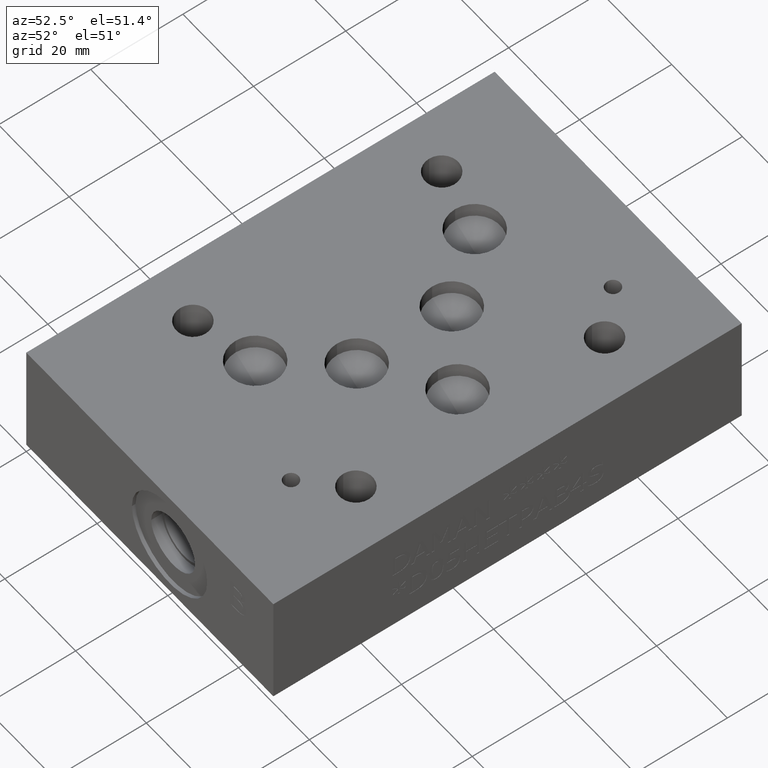
[diagram: clean part render]
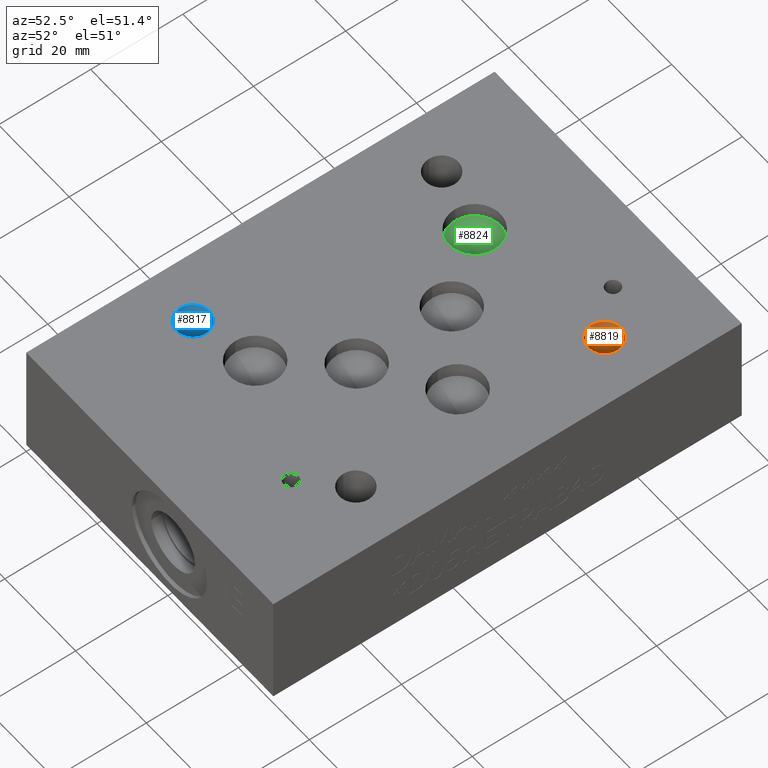
[diagram: same view with three faces highlighted in distinct colors, each labeled with its STEP entity id]
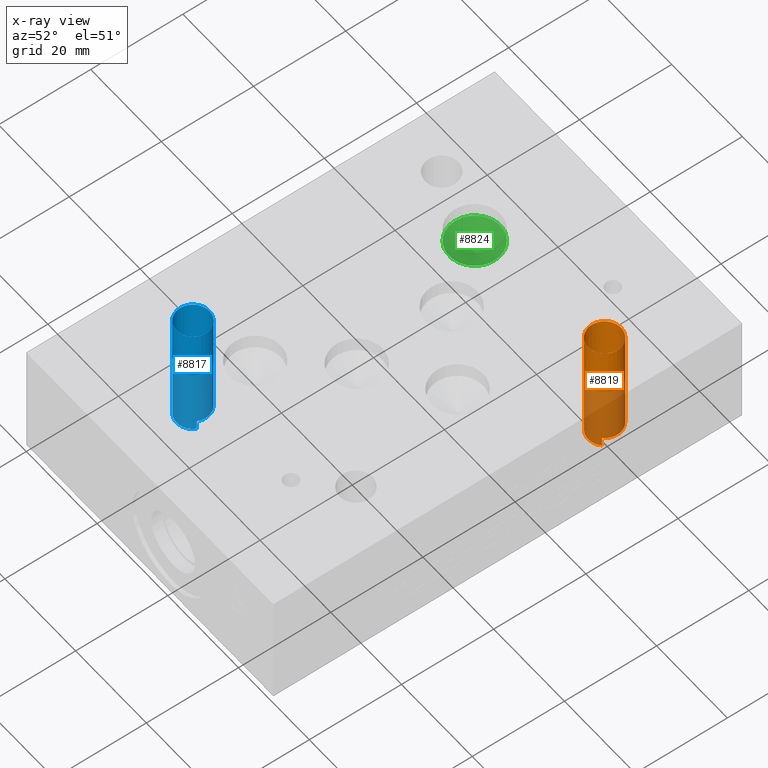
[diagram: x-ray of the same camera — body ghosted, the three highlighted faces saturated]
A machine part, auxiliary view with three faces highlighted in distinct colors.
The next image is the same camera in x-ray (body ghosted, the three faces saturated) — at least one of them is partly hidden behind the body in this view.
Their STEP definitions:

[orange] entity #8819 — the highlighted cylindrical surface (bore or boss wall) has radius 3.5687 mm, axis along (0, 0, 1).
#43=CYLINDRICAL_SURFACE('',#9265,3.5687);
#111=CIRCLE('',#9219,3.5687);
#112=CIRCLE('',#9220,3.5687);
#134=CIRCLE('',#9266,3.5687);
#968=FACE_OUTER_BOUND('',#1487,.T.);
#1487=EDGE_LOOP('',(#7833,#7834,#7835,#7836,#7837,#7838,#7839,#7840));
#2402=LINE('',#14647,#3324);
#2403=LINE('',#14649,#3325);
#2424=LINE('',#14783,#3346);
#3324=VECTOR('',#10890,10.);
#3325=VECTOR('',#10891,10.);
#3346=VECTOR('',#11032,3.5687);
#3548=B_SPLINE_CURVE_WITH_KNOTS('',3,(#14621,#14622,#14623,#14624,#14625,
#14626,#14627,#14628,#14629,#14630,#14631,#14632,#14633,#14634,#14635,#14636,
#14637,#14638,#14639,#14640,#14641,#14642,#14643),.UNSPECIFIED.,.F.,.F.,
(4,2,2,2,2,2,2,3,2,2,4),(-0.804390652764633,-0.803493013769078,-0.669328428982256,
-0.535163844195435,-0.401372883146576,-0.267581922097717,-0.133790961048859,
0.,0.134164584786822,0.268329169573644,0.2692268085687),.UNSPECIFIED.);
#4293=VERTEX_POINT('',#14619);
#4294=VERTEX_POINT('',#14620);
#4295=VERTEX_POINT('',#14646);
#4296=VERTEX_POINT('',#14648);
#4304=VERTEX_POINT('',#14693);
#4328=VERTEX_POINT('',#14781);
#5452=EDGE_CURVE('',#4293,#4294,#3548,.T.);
#5454=EDGE_CURVE('',#4294,#4295,#2402,.T.);
#5455=EDGE_CURVE('',#4296,#4293,#2403,.T.);
#5469=EDGE_CURVE('',#4296,#4304,#111,.T.);
#5470=EDGE_CURVE('',#4304,#4295,#112,.T.);
#5509=EDGE_CURVE('',#4328,#4328,#134,.T.);
#5510=EDGE_CURVE('',#4328,#4304,#2424,.T.);
#7833=ORIENTED_EDGE('',*,*,#5509,.F.);
#7834=ORIENTED_EDGE('',*,*,#5510,.T.);
#7835=ORIENTED_EDGE('',*,*,#5469,.F.);
#7836=ORIENTED_EDGE('',*,*,#5455,.T.);
#7837=ORIENTED_EDGE('',*,*,#5452,.T.);
#7838=ORIENTED_EDGE('',*,*,#5454,.T.);
#7839=ORIENTED_EDGE('',*,*,#5470,.F.);
#7840=ORIENTED_EDGE('',*,*,#5510,.F.);
#8819=ADVANCED_FACE('',(#968),#43,.F.);
#9219=AXIS2_PLACEMENT_3D('',#14694,#10919,#10920);
#9220=AXIS2_PLACEMENT_3D('',#14695,#10921,#10922);
#9265=AXIS2_PLACEMENT_3D('',#14780,#11028,#11029);
#9266=AXIS2_PLACEMENT_3D('',#14782,#11030,#11031);
#10890=DIRECTION('',(0.,0.,-1.));
#10891=DIRECTION('',(0.,0.,1.));
#10919=DIRECTION('center_axis',(0.,0.,1.));
#10920=DIRECTION('ref_axis',(1.,0.,0.));
#10921=DIRECTION('center_axis',(0.,0.,1.));
#10922=DIRECTION('ref_axis',(1.,0.,0.));
#11028=DIRECTION('center_axis',(0.,0.,1.));
#11029=DIRECTION('ref_axis',(1.,0.,0.));
#11030=DIRECTION('center_axis',(0.,0.,-1.));
#11031=DIRECTION('ref_axis',(1.,0.,0.));
#11032=DIRECTION('',(0.,0.,-1.));
#14619=CARTESIAN_POINT('',(55.4330060195422,83.5176939804543,2.06039));
#14620=CARTESIAN_POINT('',(60.4798939804578,78.4708060195457,2.06039));
#14621=CARTESIAN_POINT('Ctrl Pts',(55.4330060195422,83.5176939804543,2.06039000000001));
#14622=CARTESIAN_POINT('Ctrl Pts',(55.4351289571659,83.5198062605668,2.06039870179396));
#14623=CARTESIAN_POINT('Ctrl Pts',(55.4372536206082,83.5219149400396,2.06040739979099));
#14624=CARTESIAN_POINT('Ctrl Pts',(55.7571951142906,83.8386521240275,2.06171555374587));
#14625=CARTESIAN_POINT('Ctrl Pts',(56.158994558232,84.1109056382655,2.06310185472209));
#14626=CARTESIAN_POINT('Ctrl Pts',(57.0381912453334,84.4706640378489,2.06565238125241));
#14627=CARTESIAN_POINT('Ctrl Pts',(57.5155884932099,84.5581689121657,2.06681653655754));
#14628=CARTESIAN_POINT('Ctrl Pts',(58.4087661048452,84.5549903240251,2.06865169527615));
#14629=CARTESIAN_POINT('Ctrl Pts',(58.8842868148541,84.4645863988936,2.06944644312878));
#14630=CARTESIAN_POINT('Ctrl Pts',(59.7590055900686,84.1004413872779,2.07050038407394));
#14631=CARTESIAN_POINT('Ctrl Pts',(60.1582036506234,83.8267002894175,2.0707595065778));
#14632=CARTESIAN_POINT('Ctrl Pts',(60.7889002894175,83.1960036506234,2.0707595065778));
#14633=CARTESIAN_POINT('Ctrl Pts',(61.0626413872779,82.7968055900686,2.07050038407393));
#14634=CARTESIAN_POINT('Ctrl Pts',(61.4267863988936,81.9220868148541,2.06944644312877));
#14635=CARTESIAN_POINT('Ctrl Pts',(61.5171903240251,81.4465661048452,2.06865169527615));
#14636=CARTESIAN_POINT('Ctrl Pts',(61.5187774020637,81.0006,2.06773539534336));
#14637=CARTESIAN_POINT('Ctrl Pts',(61.5203689121657,80.5533884932099,2.06681653655753));
#14638=CARTESIAN_POINT('Ctrl Pts',(61.4328640378489,80.0759912453334,2.06565238125241));
#14639=CARTESIAN_POINT('Ctrl Pts',(61.0731056382655,79.196794558232,2.06310185472209));
#14640=CARTESIAN_POINT('Ctrl Pts',(60.8008521240275,78.7949951142906,2.06171555374587));
#14641=CARTESIAN_POINT('Ctrl Pts',(60.4841149400407,78.4750536206094,2.06040739979099));
#14642=CARTESIAN_POINT('Ctrl Pts',(60.4820062605691,78.4729289571683,2.06039870179395));
#14643=CARTESIAN_POINT('Ctrl Pts',(60.4798939804578,78.4708060195457,2.06039000000001));
#14646=CARTESIAN_POINT('',(60.4798939804578,78.4708060195457,0.));
#14647=CARTESIAN_POINT('',(60.4798939804578,78.4708060195457,1.030195));
#14648=CARTESIAN_POINT('',(55.4330060195422,83.5176939804543,0.));
#14649=CARTESIAN_POINT('',(55.4330060195422,83.5176939804543,1.030195));
#14693=CARTESIAN_POINT('',(54.3814,80.9879,0.));
#14694=CARTESIAN_POINT('Origin',(57.9501,80.9879,0.));
#14695=CARTESIAN_POINT('Origin',(57.9501,80.9879,0.));
#14780=CARTESIAN_POINT('Origin',(57.9501,80.9879,-100.483845270154));
#14781=CARTESIAN_POINT('',(54.3814,80.9879,25.4));
#14782=CARTESIAN_POINT('Origin',(57.9501,80.9879,25.4));
#14783=CARTESIAN_POINT('',(54.3814,80.9879,-100.483845270154));

[blue] entity #8817 — the highlighted cylindrical surface (bore or boss wall) has radius 3.5687 mm, axis along (0, 0, 1).
#41=CYLINDRICAL_SURFACE('',#9261,3.5687);
#107=CIRCLE('',#9215,3.5687);
#108=CIRCLE('',#9216,3.5687);
#132=CIRCLE('',#9262,3.5687);
#966=FACE_OUTER_BOUND('',#1485,.T.);
#1485=EDGE_LOOP('',(#7817,#7818,#7819,#7820,#7821,#7822,#7823,#7824));
#2404=LINE('',#14678,#3326);
#2405=LINE('',#14680,#3327);
#2422=LINE('',#14775,#3344);
#3326=VECTOR('',#10900,10.);
#3327=VECTOR('',#10901,10.);
#3344=VECTOR('',#11022,3.5687);
#3549=B_SPLINE_CURVE_WITH_KNOTS('',3,(#14654,#14655,#14656,#14657,#14658,
#14659,#14660,#14661,#14662,#14663,#14664,#14665,#14666,#14667,#14668,#14669,
#14670,#14671,#14672,#14673,#14674),.UNSPECIFIED.,.F.,.F.,(4,2,2,2,2,2,
2,3,2,4),(-0.913101069464703,-0.801319028124167,-0.667604924607011,-0.533890821089856,
-0.400550495347957,-0.267210169606059,-0.13360508480303,0.,0.134352345046728,
0.159333256106989),.UNSPECIFIED.);
#4297=VERTEX_POINT('',#14652);
#4298=VERTEX_POINT('',#14653);
#4299=VERTEX_POINT('',#14677);
#4300=VERTEX_POINT('',#14679);
#4302=VERTEX_POINT('',#14687);
#4326=VERTEX_POINT('',#14773);
#5457=EDGE_CURVE('',#4297,#4298,#3549,.T.);
#5459=EDGE_CURVE('',#4298,#4299,#2404,.T.);
#5460=EDGE_CURVE('',#4300,#4297,#2405,.T.);
#5465=EDGE_CURVE('',#4300,#4302,#107,.T.);
#5466=EDGE_CURVE('',#4302,#4299,#108,.T.);
#5505=EDGE_CURVE('',#4326,#4326,#132,.T.);
#5506=EDGE_CURVE('',#4326,#4302,#2422,.T.);
#7817=ORIENTED_EDGE('',*,*,#5505,.F.);
#7818=ORIENTED_EDGE('',*,*,#5506,.T.);
#7819=ORIENTED_EDGE('',*,*,#5465,.F.);
#7820=ORIENTED_EDGE('',*,*,#5460,.T.);
#7821=ORIENTED_EDGE('',*,*,#5457,.T.);
#7822=ORIENTED_EDGE('',*,*,#5459,.T.);
#7823=ORIENTED_EDGE('',*,*,#5466,.F.);
#7824=ORIENTED_EDGE('',*,*,#5506,.F.);
#8817=ADVANCED_FACE('',(#966),#41,.F.);
#9215=AXIS2_PLACEMENT_3D('',#14688,#10911,#10912);
#9216=AXIS2_PLACEMENT_3D('',#14689,#10913,#10914);
#9261=AXIS2_PLACEMENT_3D('',#14772,#11018,#11019);
#9262=AXIS2_PLACEMENT_3D('',#14774,#11020,#11021);
#10900=DIRECTION('',(0.,0.,-1.));
#10901=DIRECTION('',(0.,0.,1.));
#10911=DIRECTION('center_axis',(0.,0.,1.));
#10912=DIRECTION('ref_axis',(1.,0.,0.));
#10913=DIRECTION('center_axis',(0.,0.,1.));
#10914=DIRECTION('ref_axis',(1.,0.,0.));
#11018=DIRECTION('center_axis',(0.,0.,1.));
#11019=DIRECTION('ref_axis',(1.,0.,0.));
#11020=DIRECTION('center_axis',(0.,0.,-1.));
#11021=DIRECTION('ref_axis',(1.,0.,0.));
#11022=DIRECTION('',(0.,0.,-1.));
#14652=CARTESIAN_POINT('',(8.72703294875959,28.6088585256205,2.06039));
#14653=CARTESIAN_POINT('',(15.1108670512404,25.4169414743795,2.06039));
#14654=CARTESIAN_POINT('Ctrl Pts',(8.72703294875959,28.6088585256205,2.06039));
#14655=CARTESIAN_POINT('Ctrl Pts',(8.90515608276231,28.9615891876632,2.06220543674281));
#14656=CARTESIAN_POINT('Ctrl Pts',(9.1428210025725,29.2811597078363,2.06400948535438));
#14657=CARTESIAN_POINT('Ctrl Pts',(9.7258079127047,29.8554087430205,2.06757611837308));
#14658=CARTESIAN_POINT('Ctrl Pts',(10.1268046371975,30.1260191836514,2.06951998094927));
#14659=CARTESIAN_POINT('Ctrl Pts',(11.0036957147611,30.483546615967,2.07280803010107));
#14660=CARTESIAN_POINT('Ctrl Pts',(11.4795900847641,30.5704635683897,2.07415197020673));
#14661=CARTESIAN_POINT('Ctrl Pts',(12.3697639998377,30.5672956696284,2.07598095740933));
#14662=CARTESIAN_POINT('Ctrl Pts',(12.8437854240209,30.4774889229312,2.07659075720052));
#14663=CARTESIAN_POINT('Ctrl Pts',(13.7162107913272,30.1155864384466,2.07689855995842));
#14664=CARTESIAN_POINT('Ctrl Pts',(14.1146147320757,29.8434906949049,2.07659652759492));
#14665=CARTESIAN_POINT('Ctrl Pts',(14.7453925298364,29.2158810755496,2.07530376980593));
#14666=CARTESIAN_POINT('Ctrl Pts',(15.0198704984144,28.8179844332896,2.07422474223383));
#14667=CARTESIAN_POINT('Ctrl Pts',(15.3861941541505,27.9455115086968,2.07137502337892));
#14668=CARTESIAN_POINT('Ctrl Pts',(15.4780398812564,27.4709352423308,2.06960457885291));
#14669=CARTESIAN_POINT('Ctrl Pts',(15.4812096073961,27.0256,2.06777453661285));
#14670=CARTESIAN_POINT('Ctrl Pts',(15.4843970619804,26.5777739743116,2.06593425885061));
#14671=CARTESIAN_POINT('Ctrl Pts',(15.3983494474493,26.0994446409413,2.06378689575181));
#14672=CARTESIAN_POINT('Ctrl Pts',(15.1863335302429,25.5767856814403,2.06120201618219));
#14673=CARTESIAN_POINT('Ctrl Pts',(15.1500369333834,25.4960667349933,2.06079562534886));
#14674=CARTESIAN_POINT('Ctrl Pts',(15.1108670512404,25.4169414743795,2.06039));
#14677=CARTESIAN_POINT('',(15.1108670512404,25.4169414743795,0.));
#14678=CARTESIAN_POINT('',(15.1108670512404,25.4169414743795,1.030195));
#14679=CARTESIAN_POINT('',(8.72703294875959,28.6088585256205,0.));
#14680=CARTESIAN_POINT('',(8.72703294875959,28.6088585256205,1.030195));
#14687=CARTESIAN_POINT('',(8.3439,27.0002,0.));
#14688=CARTESIAN_POINT('Origin',(11.9126,27.0002,0.));
#14689=CARTESIAN_POINT('Origin',(11.9126,27.0002,0.));
#14772=CARTESIAN_POINT('Origin',(11.9126,27.0002,-100.483845270154));
#14773=CARTESIAN_POINT('',(8.3439,27.0002,25.4));
#14774=CARTESIAN_POINT('Origin',(11.9126,27.0002,25.4));
#14775=CARTESIAN_POINT('',(8.3439,27.0002,-100.483845270154));

[green] entity #8824 — the highlighted conical surface has half-angle 60 deg.
#65=CONICAL_SURFACE('',#9275,2.778125,1.0471975511966);
#139=CIRCLE('',#9276,5.55625);
#973=FACE_OUTER_BOUND('',#1492,.T.);
#1492=EDGE_LOOP('',(#7856,#7857,#7858));
#2429=LINE('',#14805,#3351);
#3351=VECTOR('',#11057,2.778125);
#4334=VERTEX_POINT('',#14802);
#4335=VERTEX_POINT('',#14804);
#5519=EDGE_CURVE('',#4334,#4334,#139,.T.);
#5520=EDGE_CURVE('',#4334,#4335,#2429,.T.);
#7856=ORIENTED_EDGE('',*,*,#5519,.T.);
#7857=ORIENTED_EDGE('',*,*,#5520,.T.);
#7858=ORIENTED_EDGE('',*,*,#5520,.F.);
#8824=ADVANCED_FACE('',(#973),#65,.F.);
#9275=AXIS2_PLACEMENT_3D('',#14801,#11053,#11054);
#9276=AXIS2_PLACEMENT_3D('',#14803,#11055,#11056);
#11053=DIRECTION('center_axis',(0.,0.,1.));
#11054=DIRECTION('ref_axis',(1.,0.,0.));
#11055=DIRECTION('center_axis',(0.,0.,1.));
#11056=DIRECTION('ref_axis',(1.,0.,0.));
#11057=DIRECTION('',(0.866025403784439,1.06057523872491E-16,-0.5));
#14801=CARTESIAN_POINT('Origin',(25.42032,77.7748,20.5881487834076));
#14802=CARTESIAN_POINT('',(19.86407,77.7748,22.1921));
#14803=CARTESIAN_POINT('Origin',(25.42032,77.7748,22.1921));
#14804=CARTESIAN_POINT('',(25.42032,77.7748,18.9841975668151));
#14805=CARTESIAN_POINT('',(22.642195,77.7748,20.5881487834076));